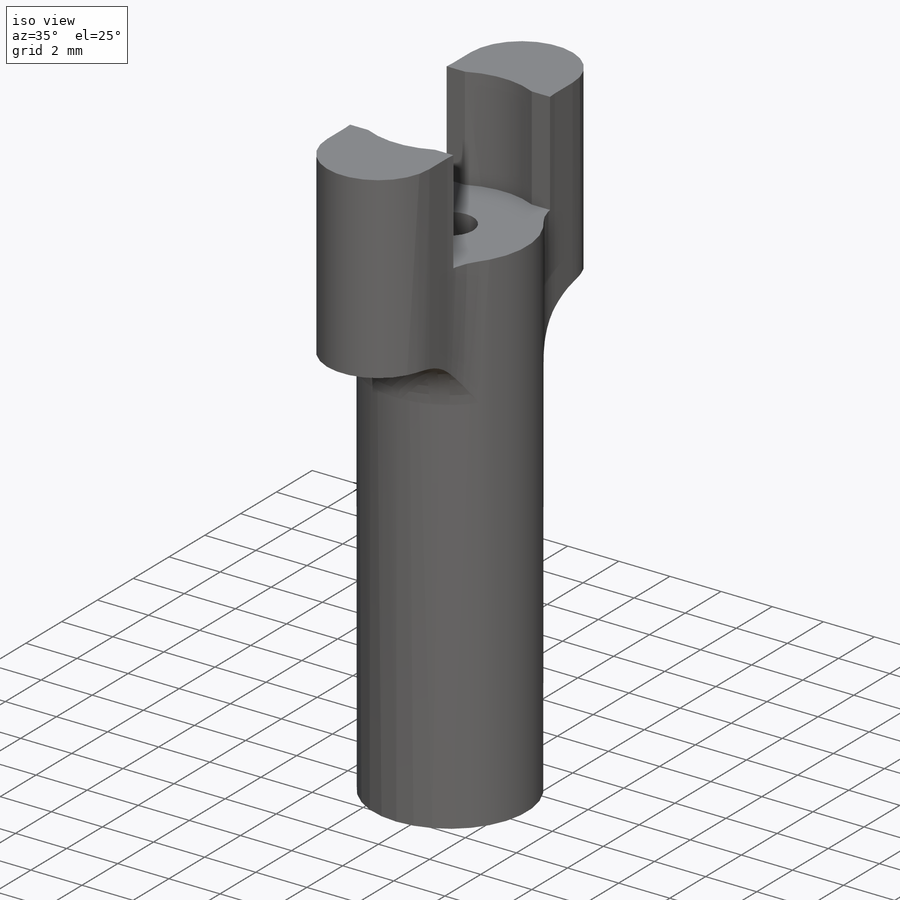
[diagram: iso view]
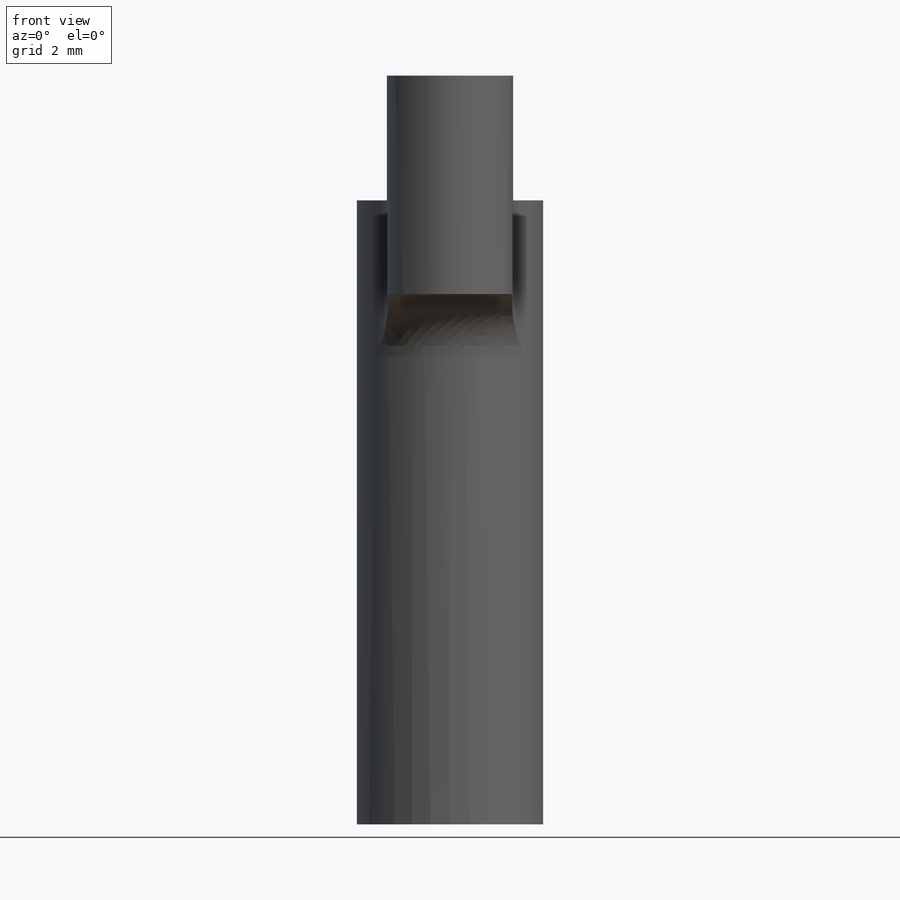
[diagram: front view]
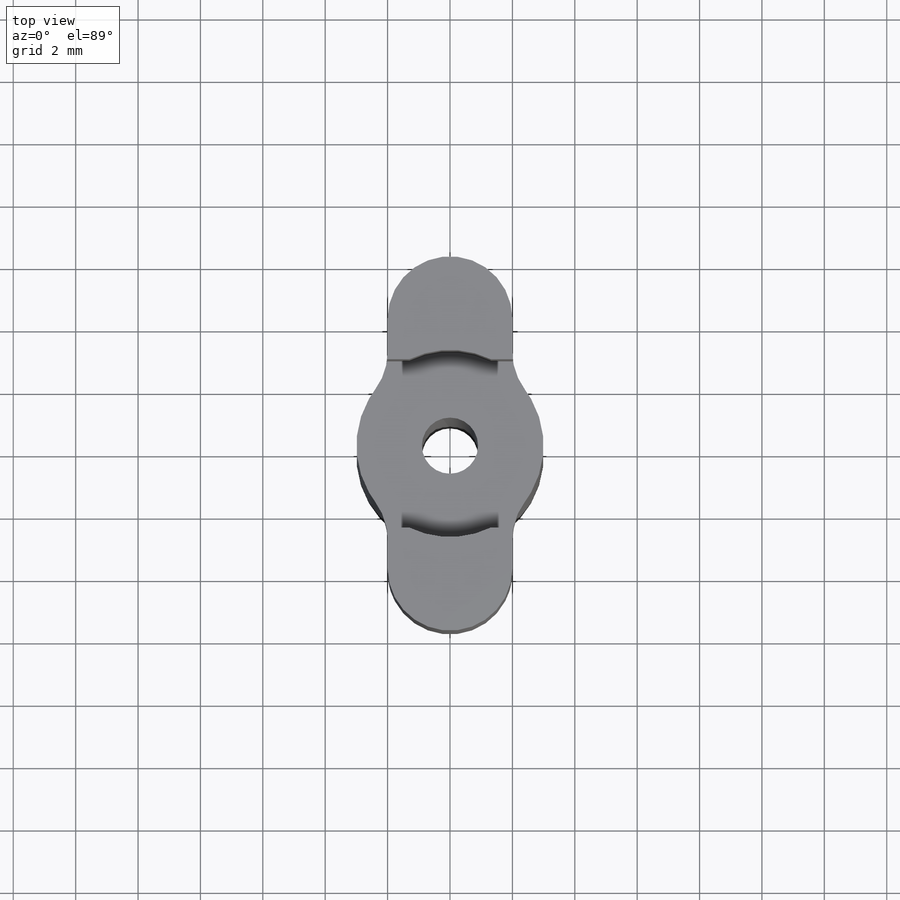
[diagram: top view]
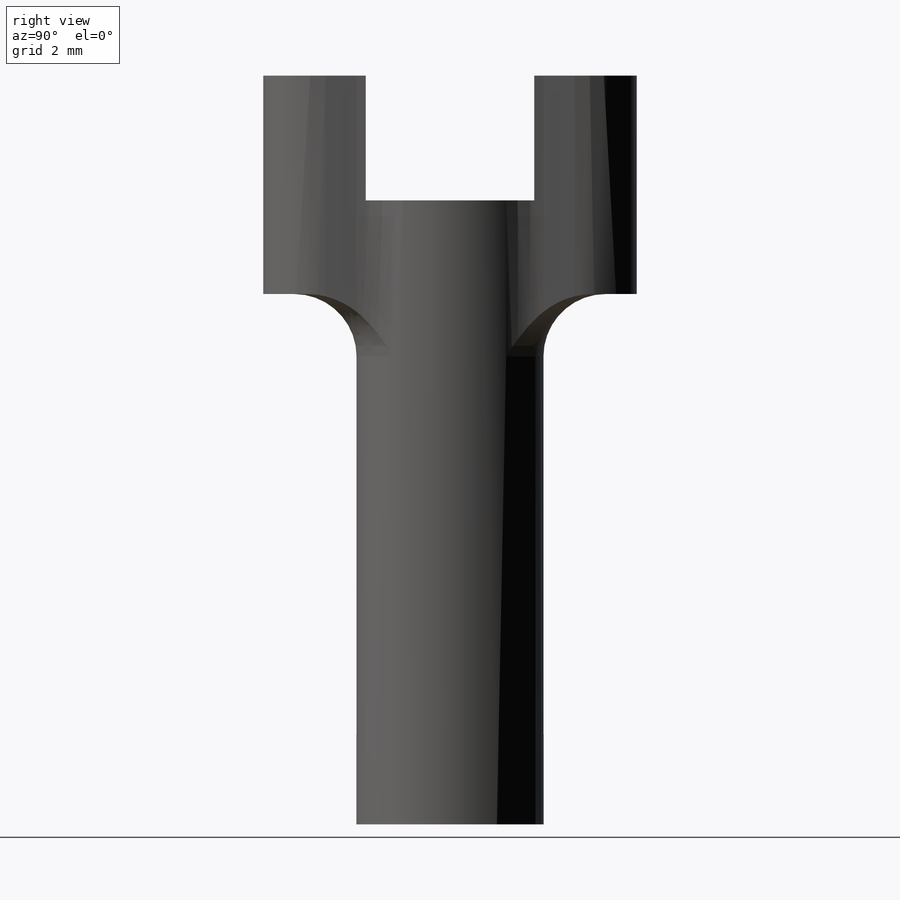
[diagram: right view]
SOLIDWORKS PART (.sldprt)
format: sldprt  version: not decoded by parser v0  size: 260,096 bytes
history: native  units: mm
features: plane x3, sketch x3, extrude x3, fillet x2, material x1 (+10 scaffold rows collapsed)
feature tree (22):
  scaffold x10  (default folders/planes/origin — collapsed)
  material  "材质 <未指定>"
  plane  "前视基准面"
  plane  "上视基准面"
  plane  "右视基准面"
  sketch  "Sketch1"  dims[D1=6.0mm D2=1.8mm]
  extrude  "Extrude1"  Depth=20mm
  sketch  "Sketch2"  dims[D1=5.4mm D2=8.0mm D3=4.0mm]
  extrude  "Extrude2"  Depth=3mm
  extrude  "Extrude3"  [1 undecoded]
  sketch  "Sketch"  dims[D1=4.0mm]
  fillet  "Fillet1"  Radius=2mm
  fillet  "Fillet2"  Radius=2mm
decode coverage: 7 of 8 modeling features carry decoded parameters
note: 1 parameter value undecoded
note: suppression state not decoded; provenance and decode notes live in map.json
